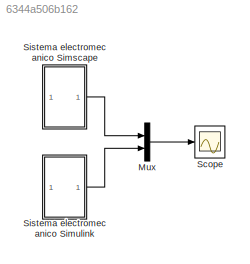
MODEL slx_6344a506b162
KIND model
CONFIG AbsTol = auto
CONFIG EnableMultiTasking = off
CONFIG FixedStep = auto
CONFIG MaxStep = auto
CONFIG MinStep = auto
CONFIG RelTol = 1e-3
CONFIG SampleTimeConstraint = Unconstrained
CONFIG SolverName = VariableStepAuto
CONFIG StartTime = 0.0
CONFIG StopTime = 10.0
BLOCK [Mux] Mux
  DisplayOption = bar
  Inputs = 2
BLOCK [Scope] Scope
  Floating = off
  NumInputPorts = 1
  ScopeSpecificationString = Simulink.scopes.TimeScopeBlockCfg('CurrentConfiguration', extmgr.ConfigurationSet(extmgr.Configuration('Core','General UI',true),extmgr.Configuration('Core','Source UI',true),extmgr.Configuration('Sources','WiredSimulink',true),extmgr.Configuration('Visuals','Time Domain',true,'SerializedDisplays',{struct('MinYLimReal','-5.99998','MaxYLimReal','53.9998','YLabelReal','','MinYLimMag','0.00000','MaxY...<+1459ch>
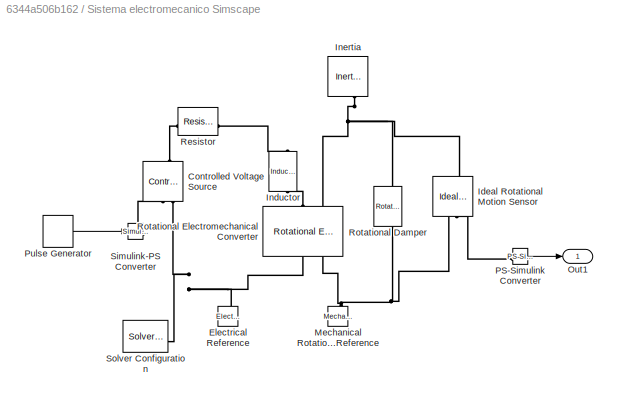
BLOCK [SubSystem] Sistema electromecanico Simscape
BLOCK [Reference] Sistema electromecanico Simscape/Controlled Voltage Source  REF=fl_lib/Electrical/Electrical Sources/Controlled Voltage
Source
  NameLocation = right
  SourceBlock = fl_lib/Electrical/Electrical Sources/Controlled Voltage\nSource
  SourceType = Controlled Voltage\nSource
BLOCK [Reference] Sistema electromecanico Simscape/Electrical Reference  REF=fl_lib/Electrical/Electrical Elements/Electrical Reference
  NameLocation = right
  SourceBlock = fl_lib/Electrical/Electrical Elements/Electrical Reference
  SourceType = Electrical Reference
BLOCK [Reference] Sistema electromecanico Simscape/Ideal Rotational Motion Sensor  REF=fl_lib/Mechanical/Mechanical Sensors/Ideal Rotational
Motion Sensor
  NameLocation = left
  SourceBlock = fl_lib/Mechanical/Mechanical Sensors/Ideal Rotational\nMotion Sensor
  SourceType = Ideal Rotational\nMotion Sensor
BLOCK [Reference] Sistema electromecanico Simscape/Inductor  REF=fl_lib/Electrical/Electrical Elements/Inductor
  NameLocation = left
  SourceBlock = fl_lib/Electrical/Electrical Elements/Inductor
  SourceType = Inductor
BLOCK [Reference] Sistema electromecanico Simscape/Inertia  REF=fl_lib/Mechanical/Rotational Elements/Inertia
  NameLocation = left
  SourceBlock = fl_lib/Mechanical/Rotational Elements/Inertia
  SourceType = Inertia
BLOCK [Reference] Sistema electromecanico Simscape/Mechanical Rotational Reference  REF=fl_lib/Mechanical/Rotational Elements/Mechanical
Rotational Reference
  NameLocation = right
  SourceBlock = fl_lib/Mechanical/Rotational Elements/Mechanical\nRotational Reference
  SourceType = Mechanical\nRotational Reference
BLOCK [Outport] Sistema electromecanico Simscape/Out1
BLOCK [Reference] Sistema electromecanico Simscape/PS-Simulink Converter  REF=nesl_utility/PS-Simulink
Converter
  SourceBlock = nesl_utility/PS-Simulink\nConverter
  SourceType = PS-Simulink\nConverter
BLOCK [DiscretePulseGenerator] Sistema electromecanico Simscape/Pulse Generator
  Amplitude = 24
  Period = 1/20000
  PulseType = Time based
  PulseWidth = 50
BLOCK [Reference] Sistema electromecanico Simscape/Resistor  REF=fl_lib/Electrical/Electrical Elements/Resistor
  SourceBlock = fl_lib/Electrical/Electrical Elements/Resistor
  SourceType = Resistor
BLOCK [Reference] Sistema electromecanico Simscape/Rotational Damper  REF=fl_lib/Mechanical/Rotational Elements/Rotational Damper
  NameLocation = left
  SourceBlock = fl_lib/Mechanical/Rotational Elements/Rotational Damper
  SourceType = Rotational Damper
BLOCK [Reference] Sistema electromecanico Simscape/Rotational Electromechanical Converter  REF=fl_lib/Electrical/Electrical Elements/Rotational
Electromechanical
Converter
  NameLocation = right
  SourceBlock = fl_lib/Electrical/Electrical Elements/Rotational\nElectromechanical\nConverter
  SourceType = Rotational\nElectromechanical\nConverter
BLOCK [Reference] Sistema electromecanico Simscape/Simulink-PS Converter  REF=nesl_utility/Simulink-PS
Converter
  SourceBlock = nesl_utility/Simulink-PS\nConverter
  SourceType = Simulink-PS\nConverter
BLOCK [Reference] Sistema electromecanico Simscape/Solver Configuration  REF=nesl_utility/Solver
Configuration
  SourceBlock = nesl_utility/Solver\nConfiguration
  SourceType = Solver\nConfiguration
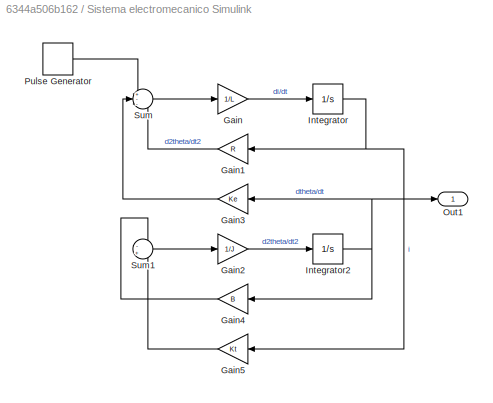
BLOCK [SubSystem] Sistema electromecanico Simulink
BLOCK [Gain] Sistema electromecanico Simulink/Gain
  Gain = 1/L
BLOCK [Gain] Sistema electromecanico Simulink/Gain1
  Gain = R
BLOCK [Gain] Sistema electromecanico Simulink/Gain2
  Gain = 1/J
BLOCK [Gain] Sistema electromecanico Simulink/Gain3
  Gain = Ke
BLOCK [Gain] Sistema electromecanico Simulink/Gain4
  Gain = B
BLOCK [Gain] Sistema electromecanico Simulink/Gain5
  Gain = Kt
BLOCK [Integrator] Sistema electromecanico Simulink/Integrator
BLOCK [Integrator] Sistema electromecanico Simulink/Integrator2
BLOCK [Outport] Sistema electromecanico Simulink/Out1
BLOCK [DiscretePulseGenerator] Sistema electromecanico Simulink/Pulse Generator
  Amplitude = 24
  Period = 1/20000
  PulseType = Time based
  PulseWidth = 50
BLOCK [Sum] Sistema electromecanico Simulink/Sum
  Inputs = +--
BLOCK [Sum] Sistema electromecanico Simulink/Sum1
  Inputs = -+
LINE Mux:1 -> Scope:1
LINE Sistema electromecanico Simscape/PS-Simulink Converter:1 -> Sistema electromecanico Simscape/Out1:1
LINE Sistema electromecanico Simscape/Pulse Generator:1 -> Sistema electromecanico Simscape/Simulink-PS Converter:1
LINE Sistema electromecanico Simscape:1 -> Mux:1
LINE Sistema electromecanico Simulink/Gain1:1 -> Sistema electromecanico Simulink/Sum:3
LINE Sistema electromecanico Simulink/Gain2:1 -> Sistema electromecanico Simulink/Integrator2:1
LINE Sistema electromecanico Simulink/Gain3:1 -> Sistema electromecanico Simulink/Sum:2
LINE Sistema electromecanico Simulink/Gain4:1 -> Sistema electromecanico Simulink/Sum1:1
LINE Sistema electromecanico Simulink/Gain5:1 -> Sistema electromecanico Simulink/Sum1:2
LINE Sistema electromecanico Simulink/Gain:1 -> Sistema electromecanico Simulink/Integrator:1
NET Sistema electromecanico Simulink/Integrator2:1 -> Sistema electromecanico Simulink/Gain3:1, Sistema electromecanico Simulink/Gain4:1, Sistema electromecanico Simulink/Out1:1
NET Sistema electromecanico Simulink/Integrator:1 -> Sistema electromecanico Simulink/Gain1:1, Sistema electromecanico Simulink/Gain5:1
LINE Sistema electromecanico Simulink/Pulse Generator:1 -> Sistema electromecanico Simulink/Sum:1
LINE Sistema electromecanico Simulink/Sum1:1 -> Sistema electromecanico Simulink/Gain2:1
LINE Sistema electromecanico Simulink/Sum:1 -> Sistema electromecanico Simulink/Gain:1
LINE Sistema electromecanico Simulink:1 -> Mux:2
PLINE Sistema electromecanico Simscape/Controlled Voltage Source:LConn1 -- Sistema electromecanico Simscape/Resistor:LConn1
PLINE Sistema electromecanico Simscape/Controlled Voltage Source:RConn1 -- Sistema electromecanico Simscape/Simulink-PS Converter:RConn1
PNET net1: Sistema electromecanico Simscape/Controlled Voltage Source:RConn2 -- Sistema electromecanico Simscape/Electrical Reference:LConn1 -- Sistema electromecanico Simscape/Rotational Electromechanical Converter:RConn1 -- Sistema electromecanico Simscape/Solver Configuration:RConn1
PNET net2: Sistema electromecanico Simscape/Ideal Rotational Motion Sensor:LConn1 -- Sistema electromecanico Simscape/Inertia:LConn1 -- Sistema electromecanico Simscape/Rotational Damper:LConn1 -- Sistema electromecanico Simscape/Rotational Electromechanical Converter:LConn2
PNET net3: Sistema electromecanico Simscape/Ideal Rotational Motion Sensor:RConn1 -- Sistema electromecanico Simscape/Mechanical Rotational Reference:LConn1 -- Sistema electromecanico Simscape/Rotational Damper:RConn1 -- Sistema electromecanico Simscape/Rotational Electromechanical Converter:RConn2
PLINE Sistema electromecanico Simscape/Ideal Rotational Motion Sensor:RConn2 -- Sistema electromecanico Simscape/PS-Simulink Converter:LConn1
PLINE Sistema electromecanico Simscape/Inductor:LConn1 -- Sistema electromecanico Simscape/Resistor:RConn1
PLINE Sistema electromecanico Simscape/Inductor:RConn1 -- Sistema electromecanico Simscape/Rotational Electromechanical Converter:LConn1
note: NET lines group one-source signal fan-out (src -> all destinations, sorted); 1:1 wires keep LINE; PNET lines group multi-terminal physical nets as a canonical sorted terminal list (undirected conserving connections); 2-terminal nets keep the pairwise PLINE form
